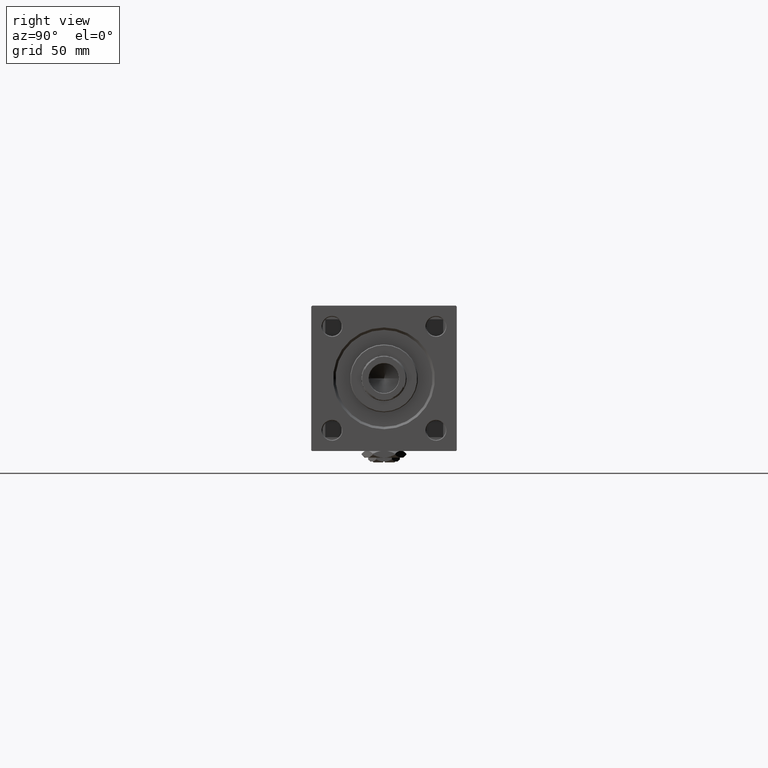
[diagram: clean part render]
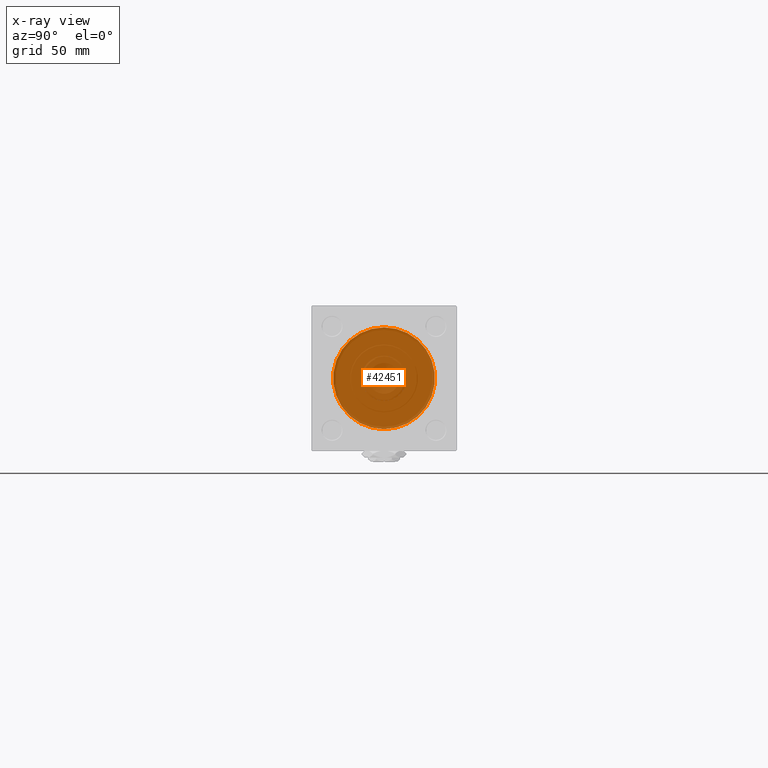
[diagram: x-ray — body ghosted, one internal face saturated and labeled with its STEP entity id]
A machine part, right view, then the same camera in x-ray: the body is ghosted and one INTERNAL B-rep face — a face not visible from any outside direction — is saturated and labeled: STEP entity #42451.
In plain terms, the highlighted planar face has unit normal (-1, 0, 0).
Its self-contained STEP definition (entity closure, byte-faithful):
#1534 = CARTESIAN_POINT ( 'NONE',  ( 37.00000000000000711, 4.286263797015736595E-16, -3.500000000000000000 ) ) ;
#1836 = CARTESIAN_POINT ( 'NONE',  ( 37.00000000000000711, 0.000000000000000000, 3.500000000000000000 ) ) ;
#2252 = DIRECTION ( 'NONE',  ( -1.000000000000000000, 0.000000000000000000, -0.000000000000000000 ) ) ;
#2430 = DIRECTION ( 'NONE',  ( 1.000000000000000000, 0.000000000000000000, 0.000000000000000000 ) ) ;
#5125 = DIRECTION ( 'NONE',  ( 0.000000000000000000, 0.000000000000000000, 1.000000000000000000 ) ) ;
#7037 = CIRCLE ( 'NONE', #24783, 31.50000000000000000 ) ;
#7108 = AXIS2_PLACEMENT_3D ( 'NONE', #12790, #28939, #5125 ) ;
#9210 = FACE_BOUND ( 'NONE', #44209, .T. ) ;
#12790 = CARTESIAN_POINT ( 'NONE',  ( 37.00000000000000711, 0.000000000000000000, 0.000000000000000000 ) ) ;
#13040 = DIRECTION ( 'NONE',  ( 0.000000000000000000, 0.000000000000000000, -1.000000000000000000 ) ) ;
#13170 = PLANE ( 'NONE',  #19076 ) ;
#13780 = EDGE_CURVE ( 'NONE', #27931, #32180, #7037, .T. ) ;
#15652 = EDGE_CURVE ( 'NONE', #19745, #27581, #29917, .T. ) ;
#16381 = EDGE_CURVE ( 'NONE', #32180, #27931, #42535, .T. ) ;
#16487 = DIRECTION ( 'NONE',  ( 1.000000000000000000, 0.000000000000000000, 0.000000000000000000 ) ) ;
#17681 = ORIENTED_EDGE ( 'NONE', *, *, #15652, .T. ) ;
#17917 = DIRECTION ( 'NONE',  ( -1.000000000000000000, 0.000000000000000000, -0.000000000000000000 ) ) ;
#19076 = AXIS2_PLACEMENT_3D ( 'NONE', #45452, #17917, #33811 ) ;
#19745 = VERTEX_POINT ( 'NONE', #1836 ) ;
#20457 = CARTESIAN_POINT ( 'NONE',  ( 37.00000000000000000, -2.602085213965210642E-15, 0.000000000000000000 ) ) ;
#22596 = CARTESIAN_POINT ( 'NONE',  ( 37.00000000000000000, -2.602085213965210642E-15, 31.50000000000000000 ) ) ;
#24783 = AXIS2_PLACEMENT_3D ( 'NONE', #20457, #16487, #13040 ) ;
#26846 = CARTESIAN_POINT ( 'NONE',  ( 37.00000000000000711, 0.000000000000000000, 0.000000000000000000 ) ) ;
#27170 = ORIENTED_EDGE ( 'NONE', *, *, #13780, .T. ) ;
#27581 = VERTEX_POINT ( 'NONE', #1534 ) ;
#27931 = VERTEX_POINT ( 'NONE', #29805 ) ;
#28939 = DIRECTION ( 'NONE',  ( -1.000000000000000000, 0.000000000000000000, -0.000000000000000000 ) ) ;
#29191 = EDGE_CURVE ( 'NONE', #27581, #19745, #35649, .T. ) ;
#29805 = CARTESIAN_POINT ( 'NONE',  ( 37.00000000000000000, 1.255552203348951850E-15, -31.50000000000000000 ) ) ;
#29917 = CIRCLE ( 'NONE', #7108, 3.500000000000000000 ) ;
#30400 = ORIENTED_EDGE ( 'NONE', *, *, #16381, .T. ) ;
#31274 = EDGE_LOOP ( 'NONE', ( #30400, #27170 ) ) ;
#32180 = VERTEX_POINT ( 'NONE', #22596 ) ;
#33811 = DIRECTION ( 'NONE',  ( -0.000000000000000000, 0.000000000000000000, 1.000000000000000000 ) ) ;
#34324 = FACE_OUTER_BOUND ( 'NONE', #31274, .T. ) ;
#35649 = CIRCLE ( 'NONE', #39008, 3.500000000000000000 ) ;
#38287 = AXIS2_PLACEMENT_3D ( 'NONE', #46604, #2430, #51338 ) ;
#39008 = AXIS2_PLACEMENT_3D ( 'NONE', #26846, #2252, #50638 ) ;
#42451 = ADVANCED_FACE ( 'NONE', ( #9210, #34324 ), #13170, .F. ) ;
#42535 = CIRCLE ( 'NONE', #38287, 31.50000000000000000 ) ;
#43508 = ORIENTED_EDGE ( 'NONE', *, *, #29191, .T. ) ;
#44209 = EDGE_LOOP ( 'NONE', ( #17681, #43508 ) ) ;
#45452 = CARTESIAN_POINT ( 'NONE',  ( 37.00000000000000000, 0.000000000000000000, 0.000000000000000000 ) ) ;
#46604 = CARTESIAN_POINT ( 'NONE',  ( 37.00000000000000000, -2.602085213965210642E-15, 0.000000000000000000 ) ) ;
#50638 = DIRECTION ( 'NONE',  ( 0.000000000000000000, 0.000000000000000000, 1.000000000000000000 ) ) ;
#51338 = DIRECTION ( 'NONE',  ( 0.000000000000000000, 0.000000000000000000, -1.000000000000000000 ) ) ;